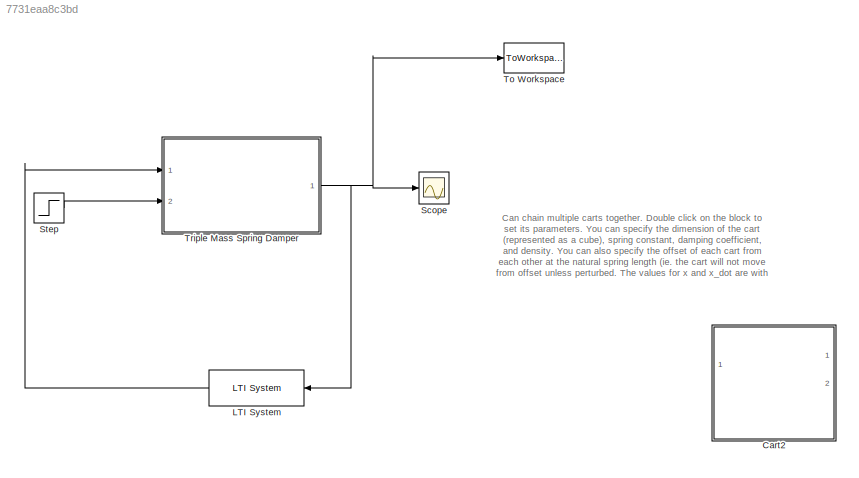
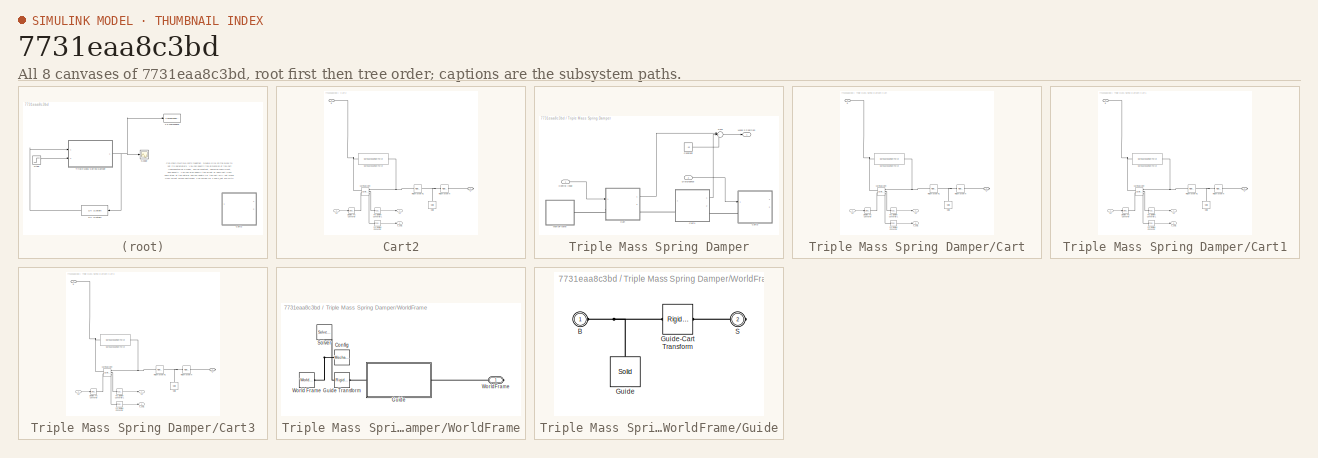
[diagram: thumbnail index - all 8 canvases of the model, root first then tree order]
MODEL slx_7731eaa8c3bd
KIND model
CONFIG AbsTol = auto
CONFIG EnableMultiTasking = off
CONFIG FixedStep = 0.0001
CONFIG MaxStep = auto
CONFIG MinStep = auto
CONFIG RelTol = 1e-3
CONFIG SampleTimeConstraint = Unconstrained
CONFIG Solver = VariableStepAuto
CONFIG SolverName = VariableStepAuto
CONFIG StartTime = 0.0
CONFIG StopTime = 35
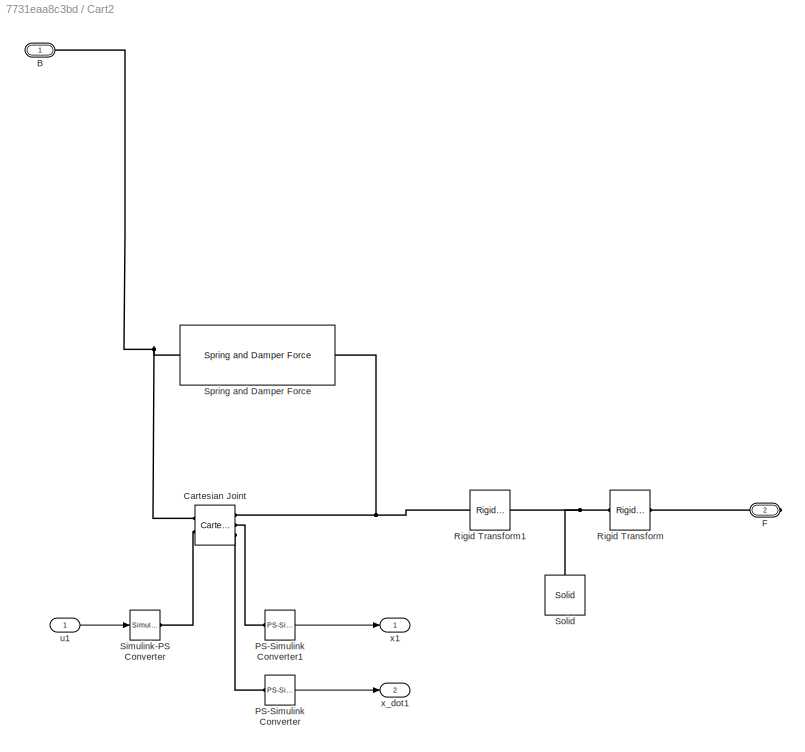
BLOCK [SubSystem] Cart2
  Commented = on
  Ports = [1, 2, 0, 0, 0, 1, 1]
  RequestExecContextInheritance = off
  Variant = off
BLOCK [PMIOPort] Cart2/B
  Port = 1
  Side = Left
BLOCK [Reference] Cart2/Cartesian Joint  REF=sm_lib/Joints/Cartesian
Joint
  Ports = [0, 0, 0, 0, 0, 2, 3]
  SourceBlock = sm_lib/Joints/Cartesian\nJoint
  SourceType = Cartesian\nJoint
BLOCK [PMIOPort] Cart2/F
  Port = 2
  Side = Right
BLOCK [Reference] Cart2/PS-Simulink Converter  REF=nesl_utility/PS-Simulink
Converter
  Ports = [0, 1, 0, 0, 0, 1]
  SourceBlock = nesl_utility/PS-Simulink\nConverter
  SourceType = PS-Simulink\nConverter
BLOCK [Reference] Cart2/PS-Simulink Converter1  REF=nesl_utility/PS-Simulink
Converter
  Ports = [0, 1, 0, 0, 0, 1]
  SourceBlock = nesl_utility/PS-Simulink\nConverter
  SourceType = PS-Simulink\nConverter
BLOCK [Reference] Cart2/Rigid Transform  REF=sm_lib/Frames and
Transforms/Rigid
Transform
  Ports = [0, 0, 0, 0, 0, 1, 1]
  SourceBlock = sm_lib/Frames and\nTransforms/Rigid\nTransform
  SourceType = Rigid\nTransform
BLOCK [Reference] Cart2/Rigid Transform1  REF=sm_lib/Frames and
Transforms/Rigid
Transform
  Ports = [0, 0, 0, 0, 0, 1, 1]
  SourceBlock = sm_lib/Frames and\nTransforms/Rigid\nTransform
  SourceType = Rigid\nTransform
BLOCK [Reference] Cart2/Simulink-PS Converter  REF=nesl_utility/Simulink-PS
Converter
  Ports = [1, 0, 0, 0, 0, 0, 1]
  SourceBlock = nesl_utility/Simulink-PS\nConverter
  SourceType = Simulink-PS\nConverter
BLOCK [Reference] Cart2/Solid  REF=sm_lib/Body Elements/Solid
  Ports = [0, 0, 0, 0, 0, 0, 1]
  SourceBlock = sm_lib/Body Elements/Solid
  SourceType = Solid
BLOCK [Reference] Cart2/Spring and Damper Force  REF=sm_lib/Forces and
Torques/Spring and
Damper Force
  Ports = [0, 0, 0, 0, 0, 1, 1]
  SourceBlock = sm_lib/Forces and\nTorques/Spring and\nDamper Force
  SourceType = Spring and\nDamper Force
BLOCK [Inport] Cart2/u1
  IconDisplay = Port number
BLOCK [Outport] Cart2/x1
  IconDisplay = Port number
BLOCK [Outport] Cart2/x_dot1
  IconDisplay = Port number
  Port = 2
BLOCK [Reference] LTI System  REF=cstblocks/LTI System
  Ports = [1, 1]
  SourceBlock = cstblocks/LTI System
  SourceType = LTI Block
BLOCK [Scope] Scope
  NumInputPorts = 1
  Ports = [1]
  ScopeSpecificationString = Simulink.scopes.TimeScopeBlockCfg('CurrentConfiguration', extmgr.ConfigurationSet(extmgr.Configuration('Core','General UI',true),extmgr.Configuration('Core','Source UI',true),extmgr.Configuration('Sources','WiredSimulink',true),extmgr.Configuration('Visuals','Time Domain',true,'SerializedDisplays',{struct('MinYLimReal','-0.0175','MaxYLimReal','0.01568','YLabelReal','','MinYLimMag','0.00000','MaxYL...<+1402ch>
BLOCK [Step] Step
  SampleTime = 0
  Time = 0
BLOCK [ToWorkspace] To Workspace
  FixptAsFi = on
  MaxDataPoints = inf
  Ports = [1]
  SampleTime = -1
  Save2DSignal = 3-D array (concatenate along third dimension)
  SaveFormat = Timeseries
  VariableName = x2
BLOCK [SubSystem] Triple Mass Spring Damper
  Ports = [2, 1]
  RequestExecContextInheritance = off
  Variant = off
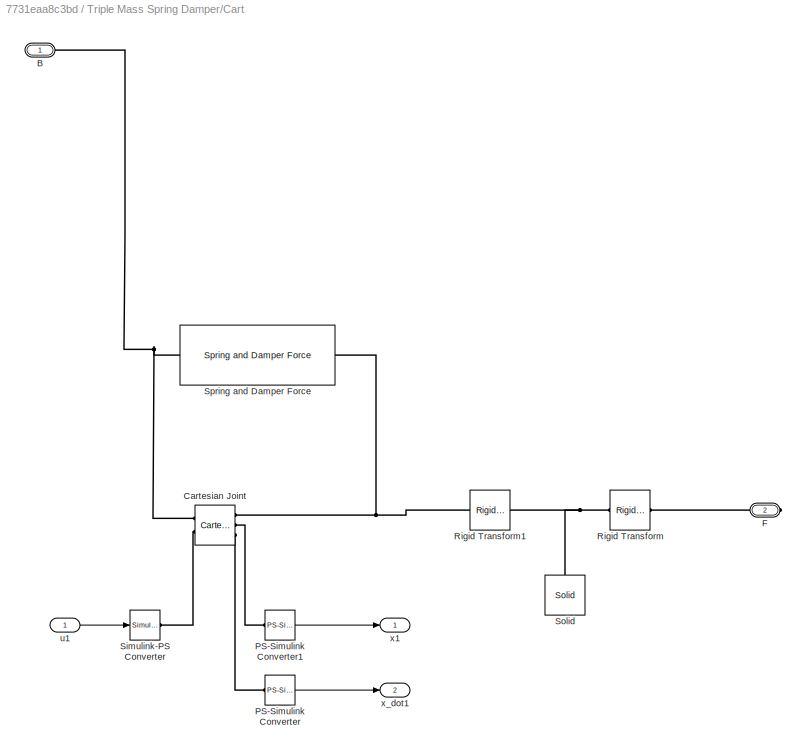
BLOCK [SubSystem] Triple Mass Spring Damper/Cart
  Ports = [1, 2, 0, 0, 0, 1, 1]
  RequestExecContextInheritance = off
  Variant = off
BLOCK [PMIOPort] Triple Mass Spring Damper/Cart/B
  Port = 1
  Side = Left
BLOCK [Reference] Triple Mass Spring Damper/Cart/Cartesian Joint  REF=sm_lib/Joints/Cartesian
Joint
  Ports = [0, 0, 0, 0, 0, 2, 3]
  SourceBlock = sm_lib/Joints/Cartesian\nJoint
  SourceType = Cartesian\nJoint
BLOCK [PMIOPort] Triple Mass Spring Damper/Cart/F
  Port = 2
  Side = Right
BLOCK [Reference] Triple Mass Spring Damper/Cart/PS-Simulink Converter  REF=nesl_utility/PS-Simulink
Converter
  Ports = [0, 1, 0, 0, 0, 1]
  SourceBlock = nesl_utility/PS-Simulink\nConverter
  SourceType = PS-Simulink\nConverter
BLOCK [Reference] Triple Mass Spring Damper/Cart/PS-Simulink Converter1  REF=nesl_utility/PS-Simulink
Converter
  Ports = [0, 1, 0, 0, 0, 1]
  SourceBlock = nesl_utility/PS-Simulink\nConverter
  SourceType = PS-Simulink\nConverter
BLOCK [Reference] Triple Mass Spring Damper/Cart/Rigid Transform  REF=sm_lib/Frames and
Transforms/Rigid
Transform
  Ports = [0, 0, 0, 0, 0, 1, 1]
  SourceBlock = sm_lib/Frames and\nTransforms/Rigid\nTransform
  SourceType = Rigid\nTransform
BLOCK [Reference] Triple Mass Spring Damper/Cart/Rigid Transform1  REF=sm_lib/Frames and
Transforms/Rigid
Transform
  Ports = [0, 0, 0, 0, 0, 1, 1]
  SourceBlock = sm_lib/Frames and\nTransforms/Rigid\nTransform
  SourceType = Rigid\nTransform
BLOCK [Reference] Triple Mass Spring Damper/Cart/Simulink-PS Converter  REF=nesl_utility/Simulink-PS
Converter
  Ports = [1, 0, 0, 0, 0, 0, 1]
  SourceBlock = nesl_utility/Simulink-PS\nConverter
  SourceType = Simulink-PS\nConverter
BLOCK [Reference] Triple Mass Spring Damper/Cart/Solid  REF=sm_lib/Body Elements/Solid
  Ports = [0, 0, 0, 0, 0, 0, 1]
  SourceBlock = sm_lib/Body Elements/Solid
  SourceType = Solid
BLOCK [Reference] Triple Mass Spring Damper/Cart/Spring and Damper Force  REF=sm_lib/Forces and
Torques/Spring and
Damper Force
  Ports = [0, 0, 0, 0, 0, 1, 1]
  SourceBlock = sm_lib/Forces and\nTorques/Spring and\nDamper Force
  SourceType = Spring and\nDamper Force
BLOCK [Inport] Triple Mass Spring Damper/Cart/u1
  IconDisplay = Port number
BLOCK [Outport] Triple Mass Spring Damper/Cart/x1
  IconDisplay = Port number
BLOCK [Outport] Triple Mass Spring Damper/Cart/x_dot1
  IconDisplay = Port number
  Port = 2
BLOCK [SubSystem] Triple Mass Spring Damper/Cart1
  Ports = [1, 2, 0, 0, 0, 1, 1]
  RequestExecContextInheritance = off
  Variant = off
BLOCK [PMIOPort] Triple Mass Spring Damper/Cart1/B
  Port = 1
  Side = Left
BLOCK [Reference] Triple Mass Spring Damper/Cart1/Cartesian Joint  REF=sm_lib/Joints/Cartesian
Joint
  Ports = [0, 0, 0, 0, 0, 2, 3]
  SourceBlock = sm_lib/Joints/Cartesian\nJoint
  SourceType = Cartesian\nJoint
BLOCK [PMIOPort] Triple Mass Spring Damper/Cart1/F
  Port = 2
  Side = Right
BLOCK [Reference] Triple Mass Spring Damper/Cart1/PS-Simulink Converter  REF=nesl_utility/PS-Simulink
Converter
  Ports = [0, 1, 0, 0, 0, 1]
  SourceBlock = nesl_utility/PS-Simulink\nConverter
  SourceType = PS-Simulink\nConverter
BLOCK [Reference] Triple Mass Spring Damper/Cart1/PS-Simulink Converter1  REF=nesl_utility/PS-Simulink
Converter
  Ports = [0, 1, 0, 0, 0, 1]
  SourceBlock = nesl_utility/PS-Simulink\nConverter
  SourceType = PS-Simulink\nConverter
BLOCK [Reference] Triple Mass Spring Damper/Cart1/Rigid Transform  REF=sm_lib/Frames and
Transforms/Rigid
Transform
  Ports = [0, 0, 0, 0, 0, 1, 1]
  SourceBlock = sm_lib/Frames and\nTransforms/Rigid\nTransform
  SourceType = Rigid\nTransform
BLOCK [Reference] Triple Mass Spring Damper/Cart1/Rigid Transform1  REF=sm_lib/Frames and
Transforms/Rigid
Transform
  Ports = [0, 0, 0, 0, 0, 1, 1]
  SourceBlock = sm_lib/Frames and\nTransforms/Rigid\nTransform
  SourceType = Rigid\nTransform
BLOCK [Reference] Triple Mass Spring Damper/Cart1/Simulink-PS Converter  REF=nesl_utility/Simulink-PS
Converter
  Ports = [1, 0, 0, 0, 0, 0, 1]
  SourceBlock = nesl_utility/Simulink-PS\nConverter
  SourceType = Simulink-PS\nConverter
BLOCK [Reference] Triple Mass Spring Damper/Cart1/Solid  REF=sm_lib/Body Elements/Solid
  Ports = [0, 0, 0, 0, 0, 0, 1]
  SourceBlock = sm_lib/Body Elements/Solid
  SourceType = Solid
BLOCK [Reference] Triple Mass Spring Damper/Cart1/Spring and Damper Force  REF=sm_lib/Forces and
Torques/Spring and
Damper Force
  Ports = [0, 0, 0, 0, 0, 1, 1]
  SourceBlock = sm_lib/Forces and\nTorques/Spring and\nDamper Force
  SourceType = Spring and\nDamper Force
BLOCK [Inport] Triple Mass Spring Damper/Cart1/u1
  IconDisplay = Port number
BLOCK [Outport] Triple Mass Spring Damper/Cart1/x1
  IconDisplay = Port number
BLOCK [Outport] Triple Mass Spring Damper/Cart1/x_dot1
  IconDisplay = Port number
  Port = 2
BLOCK [SubSystem] Triple Mass Spring Damper/Cart3
  Ports = [1, 2, 0, 0, 0, 1, 1]
  RequestExecContextInheritance = off
  Variant = off
BLOCK [PMIOPort] Triple Mass Spring Damper/Cart3/B
  Port = 1
  Side = Left
BLOCK [Reference] Triple Mass Spring Damper/Cart3/Cartesian Joint  REF=sm_lib/Joints/Cartesian
Joint
  Ports = [0, 0, 0, 0, 0, 2, 3]
  SourceBlock = sm_lib/Joints/Cartesian\nJoint
  SourceType = Cartesian\nJoint
BLOCK [PMIOPort] Triple Mass Spring Damper/Cart3/F
  Port = 2
  Side = Right
BLOCK [Reference] Triple Mass Spring Damper/Cart3/PS-Simulink Converter  REF=nesl_utility/PS-Simulink
Converter
  Ports = [0, 1, 0, 0, 0, 1]
  SourceBlock = nesl_utility/PS-Simulink\nConverter
  SourceType = PS-Simulink\nConverter
BLOCK [Reference] Triple Mass Spring Damper/Cart3/PS-Simulink Converter1  REF=nesl_utility/PS-Simulink
Converter
  Ports = [0, 1, 0, 0, 0, 1]
  SourceBlock = nesl_utility/PS-Simulink\nConverter
  SourceType = PS-Simulink\nConverter
BLOCK [Reference] Triple Mass Spring Damper/Cart3/Rigid Transform  REF=sm_lib/Frames and
Transforms/Rigid
Transform
  Ports = [0, 0, 0, 0, 0, 1, 1]
  SourceBlock = sm_lib/Frames and\nTransforms/Rigid\nTransform
  SourceType = Rigid\nTransform
BLOCK [Reference] Triple Mass Spring Damper/Cart3/Rigid Transform1  REF=sm_lib/Frames and
Transforms/Rigid
Transform
  Ports = [0, 0, 0, 0, 0, 1, 1]
  SourceBlock = sm_lib/Frames and\nTransforms/Rigid\nTransform
  SourceType = Rigid\nTransform
BLOCK [Reference] Triple Mass Spring Damper/Cart3/Simulink-PS Converter  REF=nesl_utility/Simulink-PS
Converter
  Ports = [1, 0, 0, 0, 0, 0, 1]
  SourceBlock = nesl_utility/Simulink-PS\nConverter
  SourceType = Simulink-PS\nConverter
BLOCK [Reference] Triple Mass Spring Damper/Cart3/Solid  REF=sm_lib/Body Elements/Solid
  Ports = [0, 0, 0, 0, 0, 0, 1]
  SourceBlock = sm_lib/Body Elements/Solid
  SourceType = Solid
BLOCK [Reference] Triple Mass Spring Damper/Cart3/Spring and Damper Force  REF=sm_lib/Forces and
Torques/Spring and
Damper Force
  Ports = [0, 0, 0, 0, 0, 1, 1]
  SourceBlock = sm_lib/Forces and\nTorques/Spring and\nDamper Force
  SourceType = Spring and\nDamper Force
BLOCK [Inport] Triple Mass Spring Damper/Cart3/u1
  IconDisplay = Port number
BLOCK [Outport] Triple Mass Spring Damper/Cart3/x1
  IconDisplay = Port number
BLOCK [Outport] Triple Mass Spring Damper/Cart3/x_dot1
  IconDisplay = Port number
  Port = 2
BLOCK [Constant] Triple Mass Spring Damper/Constant
  Value = .15
BLOCK [Inport] Triple Mass Spring Damper/Control Input
  IconDisplay = Port number
BLOCK [Inport] Triple Mass Spring Damper/Disturbance
  IconDisplay = Port number
  Port = 2
BLOCK [Outport] Triple Mass Spring Damper/Mass 2 Position
  IconDisplay = Port number
BLOCK [Sum] Triple Mass Spring Damper/Sum
  IconShape = round
  InputSameDT = off
  Inputs = |++-
  OutDataTypeStr = Inherit: Inherit via internal rule
  Ports = [3, 1]
  SaturateOnIntegerOverflow = off
BLOCK [SubSystem] Triple Mass Spring Damper/WorldFrame
  Ports = [0, 0, 0, 0, 0, 0, 1]
  RequestExecContextInheritance = off
  Variant = off
BLOCK [Reference] Triple Mass Spring Damper/WorldFrame/Config  REF=sm_lib/Utilities/Mechanism
Configuration
  Ports = [0, 0, 0, 0, 0, 0, 1]
  SourceBlock = sm_lib/Utilities/Mechanism\nConfiguration
  SourceType = Mechanism\nConfiguration
BLOCK [SubSystem] Triple Mass Spring Damper/WorldFrame/Guide
  Ports = [0, 0, 0, 0, 0, 1, 1]
  RequestExecContextInheritance = off
  Variant = off
BLOCK [Reference] Triple Mass Spring Damper/WorldFrame/Guide Transform  REF=sm_lib/Frames and
Transforms/Rigid
Transform
  Ports = [0, 0, 0, 0, 0, 1, 1]
  SourceBlock = sm_lib/Frames and\nTransforms/Rigid\nTransform
  SourceType = Rigid\nTransform
BLOCK [PMIOPort] Triple Mass Spring Damper/WorldFrame/Guide/B
  Port = 1
  Side = Left
BLOCK [Reference] Triple Mass Spring Damper/WorldFrame/Guide/Guide  REF=sm_lib/Body Elements/Solid
  Ports = [0, 0, 0, 0, 0, 0, 1]
  SourceBlock = sm_lib/Body Elements/Solid
  SourceType = Solid
BLOCK [Reference] Triple Mass Spring Damper/WorldFrame/Guide/Guide-Cart Transform  REF=sm_lib/Frames and
Transforms/Rigid
Transform
  Ports = [0, 0, 0, 0, 0, 1, 1]
  SourceBlock = sm_lib/Frames and\nTransforms/Rigid\nTransform
  SourceType = Rigid\nTransform
BLOCK [PMIOPort] Triple Mass Spring Damper/WorldFrame/Guide/S
  Port = 2
  Side = Right
BLOCK [Reference] Triple Mass Spring Damper/WorldFrame/Solver  REF=nesl_utility/Solver
Configuration
  Ports = [0, 0, 0, 0, 0, 0, 1]
  SourceBlock = nesl_utility/Solver\nConfiguration
  SourceType = Solver\nConfiguration
BLOCK [Reference] Triple Mass Spring Damper/WorldFrame/World Frame  REF=sm_lib/Frames and
Transforms/World Frame
  Ports = [0, 0, 0, 0, 0, 0, 1]
  SourceBlock = sm_lib/Frames and\nTransforms/World Frame
  SourceType = World Frame
BLOCK [PMIOPort] Triple Mass Spring Damper/WorldFrame/WorldFrame
  Port = 1
  Side = Right
ANNOTATION (root): Can chain multiple carts together. Double click on the block to set its parameters. You can specify the dimension of the cart (represented as a cube), spring constant, damping coefficient, and density. You can also specify the offset of each cart from each other at the natural spring length (ie. the cart will not move from offset unless perturbed. The values for x and x_dot are with respect to the...<+23ch>
LINE Cart2/PS-Simulink Converter1:1 -> Cart2/x1:1
LINE Cart2/PS-Simulink Converter:1 -> Cart2/x_dot1:1
LINE Cart2/u1:1 -> Cart2/Simulink-PS Converter:1
LINE LTI System:1 -> Triple Mass Spring Damper:1
LINE Step:1 -> Triple Mass Spring Damper:2
LINE Triple Mass Spring Damper/Cart/PS-Simulink Converter1:1 -> Triple Mass Spring Damper/Cart/x1:1
LINE Triple Mass Spring Damper/Cart/PS-Simulink Converter:1 -> Triple Mass Spring Damper/Cart/x_dot1:1
LINE Triple Mass Spring Damper/Cart/u1:1 -> Triple Mass Spring Damper/Cart/Simulink-PS Converter:1
LINE Triple Mass Spring Damper/Cart1/PS-Simulink Converter1:1 -> Triple Mass Spring Damper/Cart1/x1:1
LINE Triple Mass Spring Damper/Cart1/PS-Simulink Converter:1 -> Triple Mass Spring Damper/Cart1/x_dot1:1
LINE Triple Mass Spring Damper/Cart1/u1:1 -> Triple Mass Spring Damper/Cart1/Simulink-PS Converter:1
LINE Triple Mass Spring Damper/Cart1:1 -> Triple Mass Spring Damper/Sum:2
LINE Triple Mass Spring Damper/Cart3/PS-Simulink Converter1:1 -> Triple Mass Spring Damper/Cart3/x1:1
LINE Triple Mass Spring Damper/Cart3/PS-Simulink Converter:1 -> Triple Mass Spring Damper/Cart3/x_dot1:1
LINE Triple Mass Spring Damper/Cart3/u1:1 -> Triple Mass Spring Damper/Cart3/Simulink-PS Converter:1
LINE Triple Mass Spring Damper/Cart:1 -> Triple Mass Spring Damper/Sum:1
LINE Triple Mass Spring Damper/Constant:1 -> Triple Mass Spring Damper/Sum:3
LINE Triple Mass Spring Damper/Control Input:1 -> Triple Mass Spring Damper/Cart:1
LINE Triple Mass Spring Damper/Disturbance:1 -> Triple Mass Spring Damper/Cart3:1
LINE Triple Mass Spring Damper/Sum:1 -> Triple Mass Spring Damper/Mass 2 Position:1
NET Triple Mass Spring Damper:1 -> LTI System:1, Scope:1, To Workspace:1
PNET net1: Cart2/B:RConn1 -- Cart2/Cartesian Joint:LConn1 -- Cart2/Spring and Damper Force:LConn1
PLINE Cart2/Cartesian Joint:LConn2 -- Cart2/Simulink-PS Converter:RConn1
PNET net2: Cart2/Cartesian Joint:RConn1 -- Cart2/Rigid Transform1:LConn1 -- Cart2/Spring and Damper Force:RConn1
PLINE Cart2/Cartesian Joint:RConn2 -- Cart2/PS-Simulink Converter1:LConn1
PLINE Cart2/Cartesian Joint:RConn3 -- Cart2/PS-Simulink Converter:LConn1
PLINE Cart2/F:RConn1 -- Cart2/Rigid Transform:RConn1
PNET net3: Cart2/Rigid Transform1:RConn1 -- Cart2/Rigid Transform:LConn1 -- Cart2/Solid:RConn1
PNET net4: Triple Mass Spring Damper/Cart/B:RConn1 -- Triple Mass Spring Damper/Cart/Cartesian Joint:LConn1 -- Triple Mass Spring Damper/Cart/Spring and Damper Force:LConn1
PLINE Triple Mass Spring Damper/Cart/Cartesian Joint:LConn2 -- Triple Mass Spring Damper/Cart/Simulink-PS Converter:RConn1
PNET net5: Triple Mass Spring Damper/Cart/Cartesian Joint:RConn1 -- Triple Mass Spring Damper/Cart/Rigid Transform1:LConn1 -- Triple Mass Spring Damper/Cart/Spring and Damper Force:RConn1
PLINE Triple Mass Spring Damper/Cart/Cartesian Joint:RConn2 -- Triple Mass Spring Damper/Cart/PS-Simulink Converter1:LConn1
PLINE Triple Mass Spring Damper/Cart/Cartesian Joint:RConn3 -- Triple Mass Spring Damper/Cart/PS-Simulink Converter:LConn1
PLINE Triple Mass Spring Damper/Cart/F:RConn1 -- Triple Mass Spring Damper/Cart/Rigid Transform:RConn1
PNET net6: Triple Mass Spring Damper/Cart/Rigid Transform1:RConn1 -- Triple Mass Spring Damper/Cart/Rigid Transform:LConn1 -- Triple Mass Spring Damper/Cart/Solid:RConn1
PNET net7: Triple Mass Spring Damper/Cart1/B:RConn1 -- Triple Mass Spring Damper/Cart1/Cartesian Joint:LConn1 -- Triple Mass Spring Damper/Cart1/Spring and Damper Force:LConn1
PLINE Triple Mass Spring Damper/Cart1/Cartesian Joint:LConn2 -- Triple Mass Spring Damper/Cart1/Simulink-PS Converter:RConn1
PNET net8: Triple Mass Spring Damper/Cart1/Cartesian Joint:RConn1 -- Triple Mass Spring Damper/Cart1/Rigid Transform1:LConn1 -- Triple Mass Spring Damper/Cart1/Spring and Damper Force:RConn1
PLINE Triple Mass Spring Damper/Cart1/Cartesian Joint:RConn2 -- Triple Mass Spring Damper/Cart1/PS-Simulink Converter1:LConn1
PLINE Triple Mass Spring Damper/Cart1/Cartesian Joint:RConn3 -- Triple Mass Spring Damper/Cart1/PS-Simulink Converter:LConn1
PLINE Triple Mass Spring Damper/Cart1/F:RConn1 -- Triple Mass Spring Damper/Cart1/Rigid Transform:RConn1
PNET net9: Triple Mass Spring Damper/Cart1/Rigid Transform1:RConn1 -- Triple Mass Spring Damper/Cart1/Rigid Transform:LConn1 -- Triple Mass Spring Damper/Cart1/Solid:RConn1
PLINE Triple Mass Spring Damper/Cart1:LConn1 -- Triple Mass Spring Damper/Cart:RConn1
PLINE Triple Mass Spring Damper/Cart1:RConn1 -- Triple Mass Spring Damper/Cart3:LConn1
PNET net10: Triple Mass Spring Damper/Cart3/B:RConn1 -- Triple Mass Spring Damper/Cart3/Cartesian Joint:LConn1 -- Triple Mass Spring Damper/Cart3/Spring and Damper Force:LConn1
PLINE Triple Mass Spring Damper/Cart3/Cartesian Joint:LConn2 -- Triple Mass Spring Damper/Cart3/Simulink-PS Converter:RConn1
PNET net11: Triple Mass Spring Damper/Cart3/Cartesian Joint:RConn1 -- Triple Mass Spring Damper/Cart3/Rigid Transform1:LConn1 -- Triple Mass Spring Damper/Cart3/Spring and Damper Force:RConn1
PLINE Triple Mass Spring Damper/Cart3/Cartesian Joint:RConn2 -- Triple Mass Spring Damper/Cart3/PS-Simulink Converter1:LConn1
PLINE Triple Mass Spring Damper/Cart3/Cartesian Joint:RConn3 -- Triple Mass Spring Damper/Cart3/PS-Simulink Converter:LConn1
PLINE Triple Mass Spring Damper/Cart3/F:RConn1 -- Triple Mass Spring Damper/Cart3/Rigid Transform:RConn1
PNET net12: Triple Mass Spring Damper/Cart3/Rigid Transform1:RConn1 -- Triple Mass Spring Damper/Cart3/Rigid Transform:LConn1 -- Triple Mass Spring Damper/Cart3/Solid:RConn1
PLINE Triple Mass Spring Damper/Cart:LConn1 -- Triple Mass Spring Damper/WorldFrame:RConn1
PNET net13: Triple Mass Spring Damper/WorldFrame/Config:RConn1 -- Triple Mass Spring Damper/WorldFrame/Guide Transform:LConn1 -- Triple Mass Spring Damper/WorldFrame/Solver:RConn1 -- Triple Mass Spring Damper/WorldFrame/World Frame:RConn1
PLINE Triple Mass Spring Damper/WorldFrame/Guide Transform:RConn1 -- Triple Mass Spring Damper/WorldFrame/Guide:LConn1
PNET net14: Triple Mass Spring Damper/WorldFrame/Guide/B:RConn1 -- Triple Mass Spring Damper/WorldFrame/Guide/Guide-Cart Transform:LConn1 -- Triple Mass Spring Damper/WorldFrame/Guide/Guide:RConn1
PLINE Triple Mass Spring Damper/WorldFrame/Guide/Guide-Cart Transform:RConn1 -- Triple Mass Spring Damper/WorldFrame/Guide/S:RConn1
PLINE Triple Mass Spring Damper/WorldFrame/Guide:RConn1 -- Triple Mass Spring Damper/WorldFrame/WorldFrame:RConn1
note: NET lines group one-source signal fan-out (src -> all destinations, sorted); 1:1 wires keep LINE; PNET lines group multi-terminal physical nets as a canonical sorted terminal list (undirected conserving connections); 2-terminal nets keep the pairwise PLINE form
